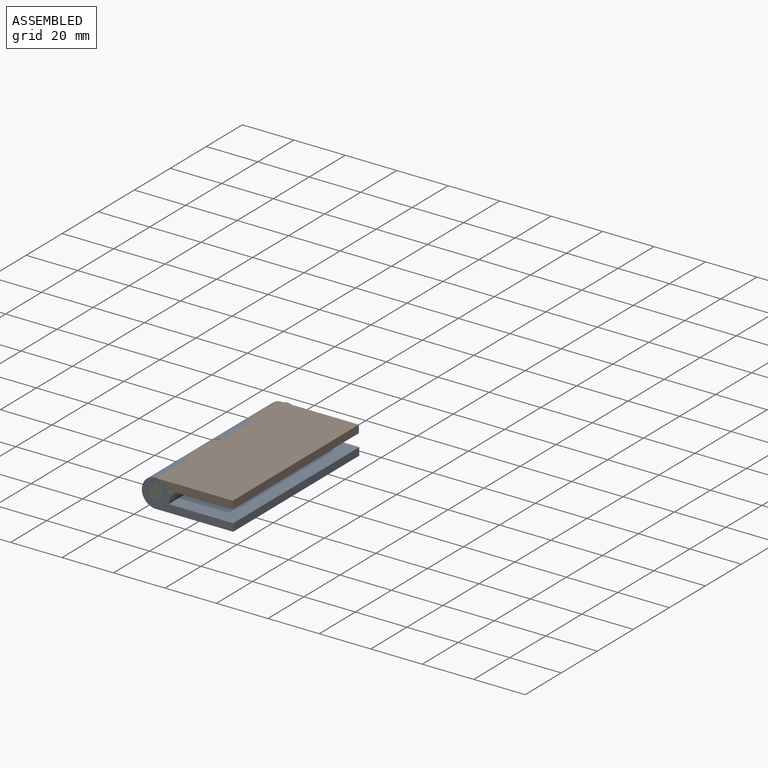
[diagram: assembled view]
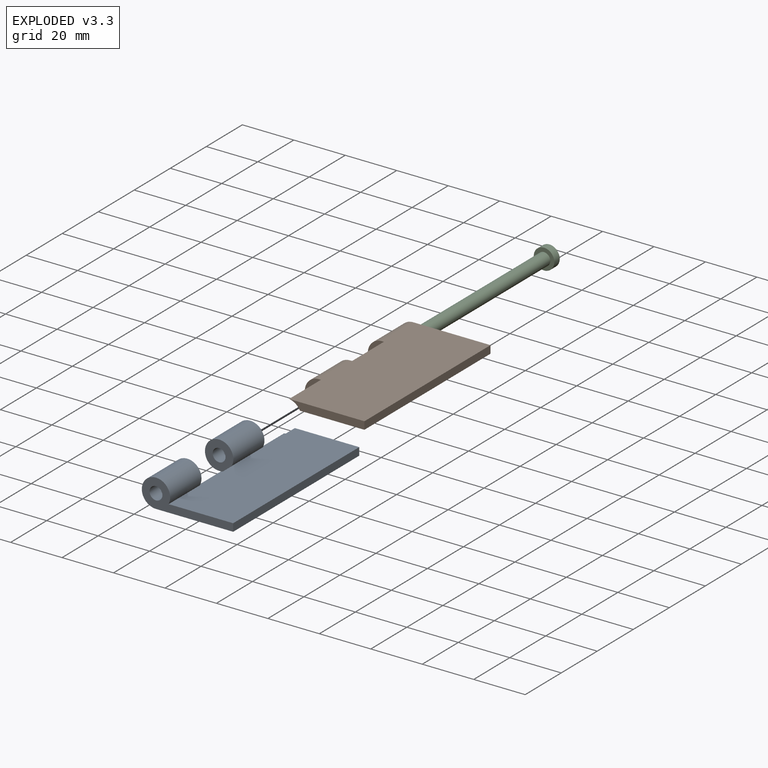
[diagram: exploded view]
GUIDED TOUR — FREECAD ASSEMBLY "ave door hinge"

This assembly has 3 components, labeled P0..P2 below (a component is one placed body or linked part; the same part can appear more than once), held together by 2 modeled joints. A joint is a constraint between two components; its type names the relative motion it leaves free:
  REVOLUTE — leaves rotation about the listed axis free (a hinge),
  SLIDER — leaves translation along the listed axis free.
Axis/direction vectors are unit vectors and 'through' points are millimeter coordinates, both in the assembly's world frame.

MATES
  1. SLIDER [Slider] "Joint": P2 <-> P0, axis (0.000, -1.000, 0.000) through (-15.00, -35.00, 5.50) mm
  2. REVOLUTE [Revolute] "Joint001": P0 <-> P1, axis (0.000, -1.000, 0.000) through (-15.00, -17.60, 5.50) mm

ASSEMBLY ORDER
  1. P0 — the base component [order heuristic]
  2. P1 [order heuristic]
  3. P2 [order heuristic]
Order-tag legend:
  [order heuristic] — this assembly is geometrically interlocked (no collision-free removal order exists), so components are listed in mate-graph order; insertion feasibility is not verified.

Of the 3 components, 3 carry a construction recipe — the FreeCAD feature program (sketches with constraints, then the solid features that consume them) that regenerates the part from scratch, quoted from this document or from the linked companion document it references; the rest are supplied as boundary geometry only. The tour below walks the components in assembly order: each is shown spotlighted twice — in the assembled view, then in the exploded view, where a leader line traces a displaced component back to its assembled socket (components that stay in place when exploded have no leader line; saturated green if recipe-attached, orange if geometry-only; every other component desaturated gray) — followed by its recipe or geometry summary and the mates that hold it.
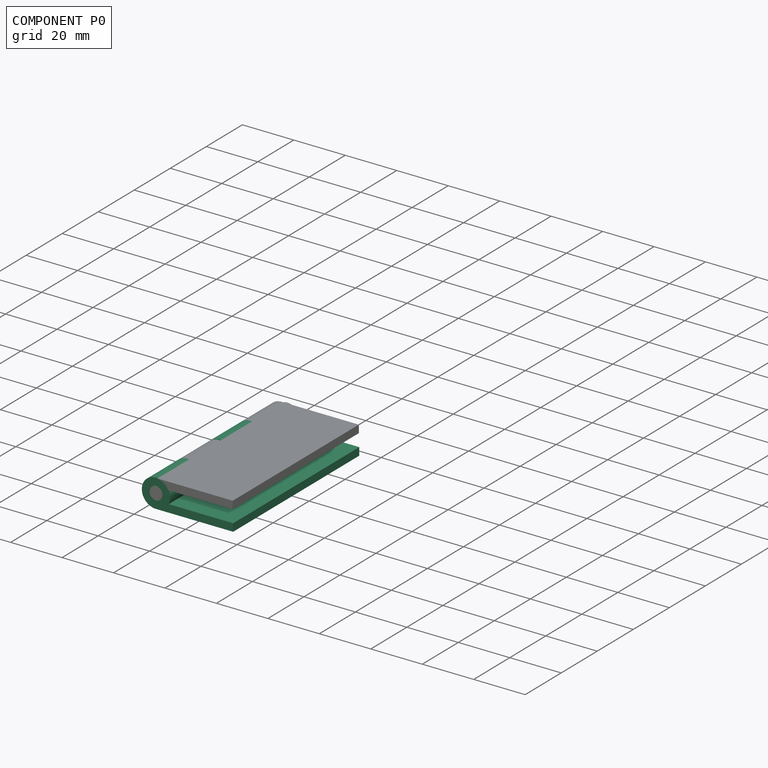
[diagram: component P0 — assembled]
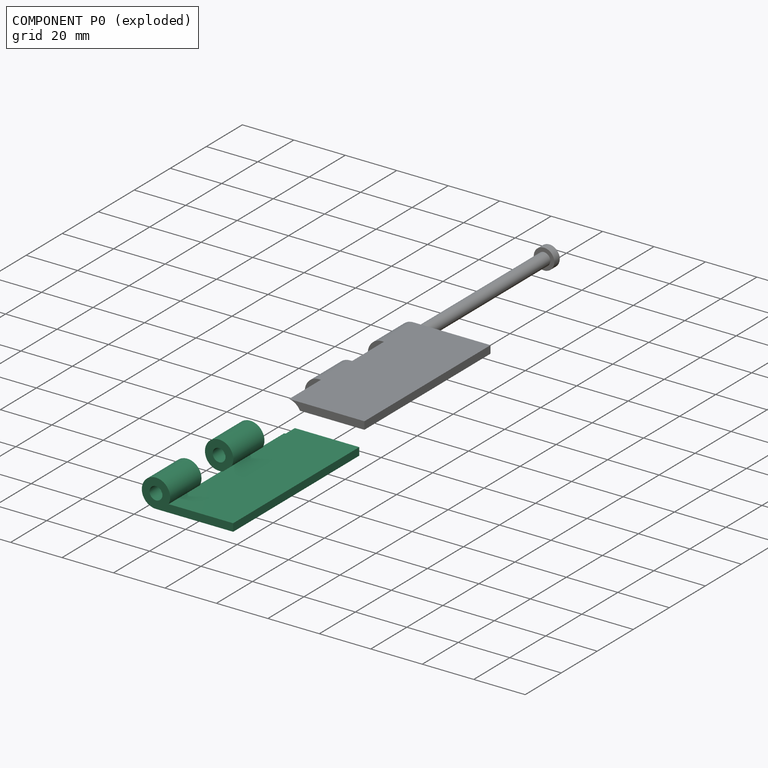
[diagram: component P0 — exploded]
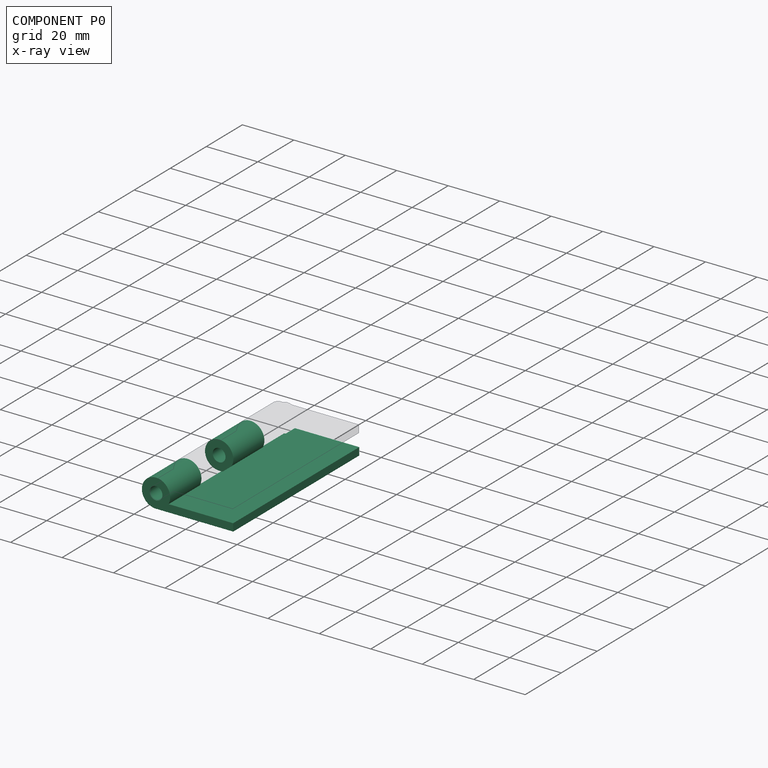
[diagram: component P0 — x-ray view]
COMPONENT P0 — recipe-attached ("Body005", modeled in this document).
Held by: SLIDER mate "Joint" to P2; REVOLUTE mate "Joint001" to P1.
Construction recipe (the document's own serialized feature program — sketch geometry with constraints, then the solid features built on it; lengths are millimeters unless a unit is written):

FEATURE [Sketcher::SketchObject] Sketch
  ArcFitTolerance = 1e-06
  AttachmentSupport = -> [XY_Plane]
  FullyConstrained = true
  MakeInternals = false
  MapMode = 5
  expr: Constraints[10] = <<demensions>>.bd
  expr: Constraints[11] = <<demensions>>.bw
  sketch-geometry (5):
    g0: LineSegment StartX=-15 StartY=-35 StartZ=0 EndX=15 EndY=-35 EndZ=0
    g1: LineSegment StartX=15 StartY=-35 StartZ=0 EndX=15 EndY=35 EndZ=0
    g2: LineSegment StartX=15 StartY=35 StartZ=0 EndX=-15 EndY=35 EndZ=0
    g3: LineSegment StartX=-15 StartY=35 StartZ=0 EndX=-15 EndY=-35 EndZ=0
    g4: GeomPoint [constr] X=0 Y=-3e-16 Z=0
  constraints (12):
    c: Coincident(g0,g1)
    c: Coincident(g1,g2)
    c: Coincident(g2,g3)
    c: Coincident(g3,g0)
    c: Horizontal(g0)
    c: Horizontal(g2)
    c: Vertical(g1)
    c: Vertical(g3)
    c: Symmetric(g2,g0,g4)
    c: Coincident(g4,g-1)
    c: DistanceX(g2,g2) = 30
    c: DistanceY(g1,g1) = 70
FEATURE [PartDesign::Pad] Pad
  Direction = (0,0,1)
  Length = 3
  Length2 = 10
  Profile = -> Sketch
  ReferenceAxis = -> Sketch [N_Axis]
  Refine = true
  Suppressed = false
  Type = 0
  expr: Length = <<demensions>>.bh
FEATURE [Sketcher::SketchObject] Sketch001
  ArcFitTolerance = 1e-06
  AttachmentSupport = -> [Pad]
  ExternalGeometry = -> [Pad]
  FullyConstrained = true
  MakeInternals = false
  MapMode = 5
  Placement = pos=(0,-35,0) rot=(1,0,0;1.5708rad)
  expr: Constraints[1] = <<demensions>>.cs
  expr: Constraints[2] = <<demensions>>.bh
  expr: Constraints[4] = -<<demensions>>.cs / 2
  sketch-geometry (2):
    g0: Circle CenterX=-15 CenterY=5.5 CenterZ=0 NormalX=0 NormalY=0 NormalZ=1 AngleXU=0 Radius=2.5
    g1: Circle CenterX=-15 CenterY=5.5 CenterZ=0 NormalX=0 NormalY=0 NormalZ=1 AngleXU=0 Radius=5.5
  constraints (5):
    c: Coincident(g1,g0)
    c: Diameter(g0) = 5
    c: Distance(g0,g1) = 3
    c: Tangent(g1,g-1)
    c: Distance(g0,g-3) = -2.5
FEATURE [PartDesign::Pad] Pad001
  BaseFeature = -> Pad
  Direction = (0,-1,2e-16)
  Length = 17.4
  Length2 = 10
  Profile = -> Sketch001
  ReferenceAxis = -> Sketch001 [N_Axis]
  Refine = true
  Reversed = true
  Suppressed = false
  Type = 0
  expr: Length = <<demensions>>.bw / 4 - <<demensions>>.to
FEATURE [PartDesign::LinearPattern] LinearPattern
  Direction = -> Y_Axis
  Length = 34.95
  Mode = 0
  Occurrences = 2
  Offset = 34.95
  Refine = true
  Suppressed = false
  TransformMode = 0
  expr: Length = <<demensions>>.bw / 2 - <<demensions>>.to / 2
FEATURE [PartDesign::MultiTransform] MultiTransform
  BaseFeature = -> Pad001
  Originals = -> [Pad001]
  Refine = true
  Suppressed = false
  TransformMode = 0
  Transformations = -> [LinearPattern]
FEATURE [Sketcher::SketchObject] Sketch006
  ArcFitTolerance = 1e-06
  AttachmentSupport = -> [MultiTransform]
  ExternalGeometry = -> [MultiTransform]
  FullyConstrained = true
  MakeInternals = false
  MapMode = 5
  Placement = pos=(0,-17.6,0) rot=(0,0.707107,0.707107;3.14159rad)
  expr: Constraints[1] = <<demensions>>.cs + <<demensions>>.bh * 2 + <<demensions>>.to
  sketch-geometry (1):
    g0: Circle CenterX=15 CenterY=5.5 CenterZ=0 NormalX=0 NormalY=0 NormalZ=1 AngleXU=0 Radius=5.55
  constraints (2):
    c: Coincident(g0,g-4)
    c: Diameter(g0) = 11.1
FEATURE [PartDesign::Pocket] Pocket
  BaseFeature = -> MultiTransform
  Direction = (0,-1,2e-16)
  Length = 17.65
  Length2 = 5
  Profile = -> Sketch006
  ReferenceAxis = -> Sketch006 [N_Axis]
  Refine = true
  Reversed = true
  Suppressed = false
  Type = 0
  expr: Length = <<demensions>>.bw / 4 + <<demensions>>.to + <<demensions>>.to / 2
FEATURE [Sketcher::SketchObject] Sketch007
  ArcFitTolerance = 1e-06
  AttachmentSupport = -> [Pocket]
  ExternalGeometry = -> [Pocket]
  FullyConstrained = true
  MakeInternals = false
  MapMode = 5
  Placement = pos=(0,17.35,0) rot=(0,0.707107,0.707107;3.14159rad)
  expr: Constraints[1] = <<demensions>>.cs + <<demensions>>.bh * 2 + <<demensions>>.to
  sketch-geometry (1):
    g0: Circle CenterX=15 CenterY=5.5 CenterZ=0 NormalX=0 NormalY=0 NormalZ=1 AngleXU=0 Radius=5.55
  constraints (2):
    c: Coincident(g0,g-4)
    c: Diameter(g0) = 11.1
FEATURE [PartDesign::Pocket] Pocket003
  BaseFeature = -> Pocket
  Direction = (0,-1,2e-16)
  Length = 17.65
  Length2 = 5
  Profile = -> Sketch007 [Edge1]
  ReferenceAxis = -> Sketch007 [N_Axis]
  Refine = true
  Reversed = true
  Suppressed = false
  Type = 0
  expr: Length = <<demensions>>.bw / 4 + <<demensions>>.to + <<demensions>>.to / 2
FEATURE [PartDesign::Body] Body
  AllowCompound = false
  Group = -> [Sketch,Pad,Sketch001,Pad001,MultiTransform,LinearPattern,Sketch006,Pocket,Sketch007,Pocket003]
  Origin = -> Origin
  Tip = -> Pocket003
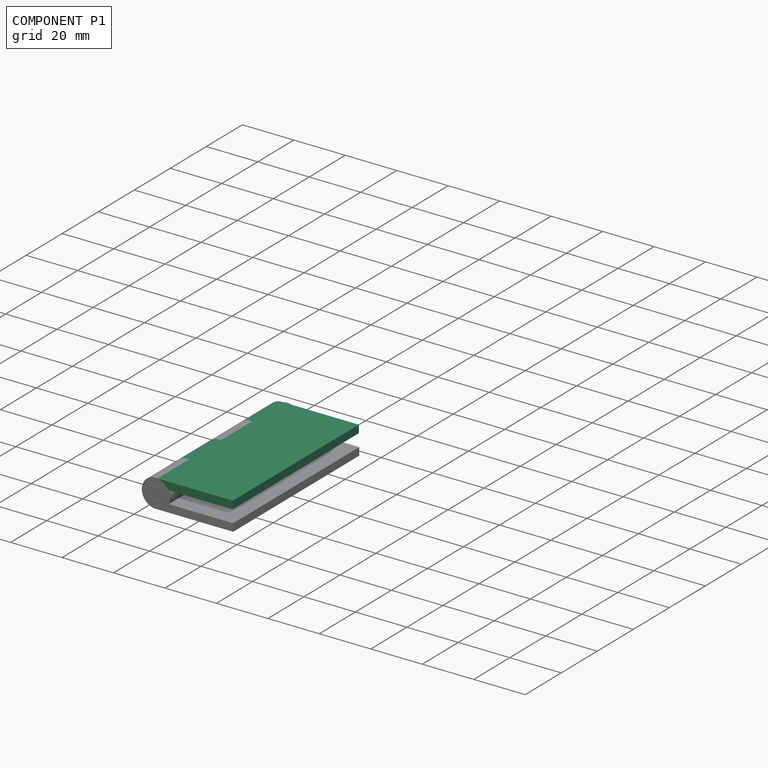
[diagram: component P1 — assembled]
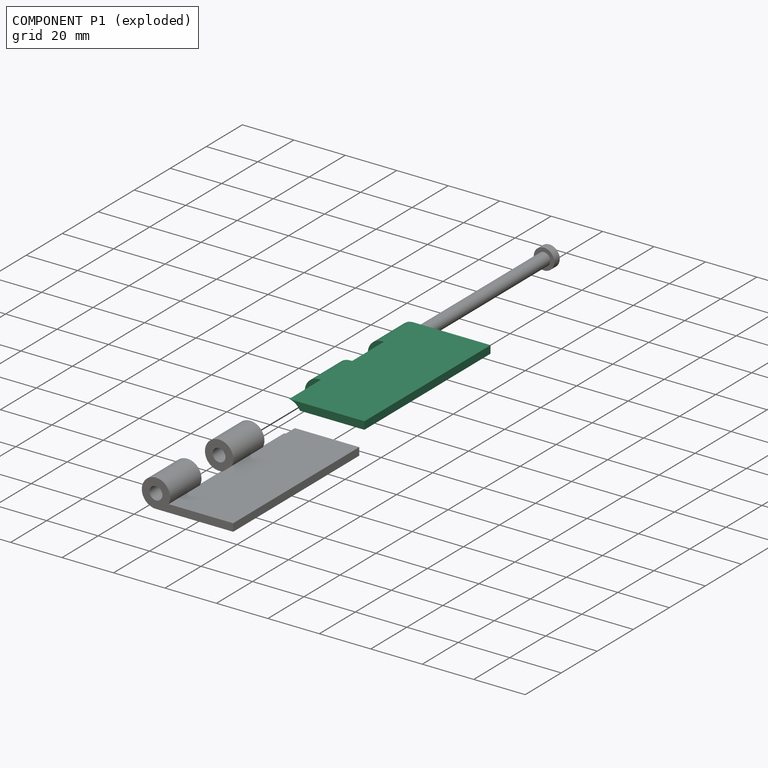
[diagram: component P1 — exploded]
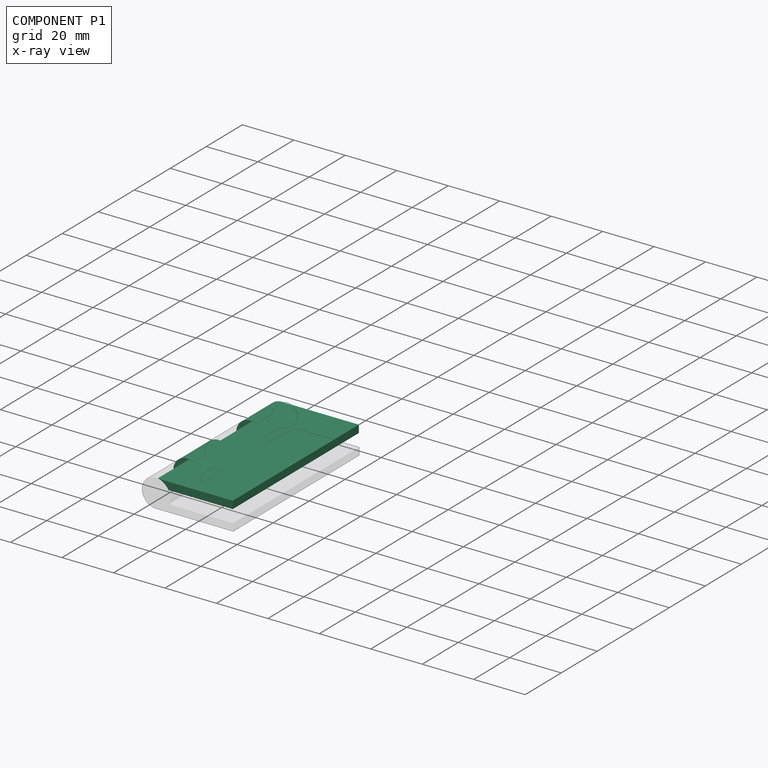
[diagram: component P1 — x-ray view]
COMPONENT P1 — recipe-attached ("Body006", modeled in this document).
Held by: REVOLUTE mate "Joint001" to P0.
Construction recipe (the document's own serialized feature program — sketch geometry with constraints, then the solid features built on it; lengths are millimeters unless a unit is written):

FEATURE [Sketcher::SketchObject] Sketch002
  ArcFitTolerance = 1e-06
  AttachmentSupport = -> [XY_Plane001]
  FullyConstrained = false
  MakeInternals = false
  MapMode = 5
  expr: Constraints[10] = <<demensions>>.bd
  expr: Constraints[11] = <<demensions>>.bw
  sketch-geometry (5):
    g0: LineSegment StartX=-66.0282 StartY=35 StartZ=0 EndX=-96.0282 EndY=35 EndZ=0
    g1: LineSegment StartX=-96.0282 StartY=35 StartZ=0 EndX=-96.0282 EndY=-35 EndZ=0
    g2: LineSegment StartX=-96.0282 StartY=-35 StartZ=0 EndX=-66.0282 EndY=-35 EndZ=0
    g3: LineSegment StartX=-66.0282 StartY=-35 StartZ=0 EndX=-66.0282 EndY=35 EndZ=0
    g4: GeomPoint [constr] X=-81.0282 Y=3e-16 Z=0
  constraints (12):
    c: Coincident(g0,g1)
    c: Coincident(g1,g2)
    c: Coincident(g2,g3)
    c: Coincident(g3,g0)
    c: Horizontal(g0)
    c: Horizontal(g2)
    c: Vertical(g1)
    c: Vertical(g3)
    c: Symmetric(g2,g0,g4)
    c: PointOnObject(g4,g-1)
    c: DistanceX(g2,g2) = 30
    c: DistanceY(g3,g3) = 70
FEATURE [PartDesign::Pad] Pad002
  Direction = (0,0,1)
  Length = 3
  Length2 = 10
  Profile = -> Sketch002
  ReferenceAxis = -> Sketch002 [N_Axis]
  Refine = true
  Suppressed = false
  Type = 0
  expr: Length = <<demensions>>.bh
FEATURE [Sketcher::SketchObject] Sketch003
  ArcFitTolerance = 1e-06
  AttachmentSupport = -> [Pad002]
  ExternalGeometry = -> [Pad002]
  FullyConstrained = true
  MakeInternals = false
  MapMode = 5
  Placement = pos=(0,35,0) rot=(0,0.707107,0.707107;3.14159rad)
  expr: Constraints[1] = <<demensions>>.cs
  expr: Constraints[2] = <<demensions>>.bh
  expr: Constraints[4] = -<<demensions>>.cs / 2
  sketch-geometry (2):
    g0: Circle CenterX=66.0282 CenterY=5.5 CenterZ=0 NormalX=0 NormalY=0 NormalZ=1 AngleXU=0 Radius=2.5
    g1: Circle CenterX=66.0282 CenterY=5.5 CenterZ=0 NormalX=0 NormalY=0 NormalZ=1 AngleXU=0 Radius=5.5
  constraints (5):
    c: Coincident(g1,g0)
    c: Diameter(g0) = 5
    c: Distance(g0,g1) = 3
    c: Tangent(g1,g-1)
    c: Distance(g0,g-3) = -2.5
FEATURE [PartDesign::Pad] Pad003
  BaseFeature = -> Pad002
  Direction = (0,1,-2e-16)
  Length = 17.4
  Length2 = 10
  Profile = -> Sketch003
  ReferenceAxis = -> Sketch003 [N_Axis]
  Refine = true
  Reversed = true
  Suppressed = false
  Type = 0
  expr: Length = <<demensions>>.bw / 4 - <<demensions>>.to
FEATURE [PartDesign::LinearPattern] LinearPattern001
  Direction = -> Y_Axis001
  Length = 34.95
  Mode = 0
  Occurrences = 2
  Offset = 34.95
  Refine = true
  Reversed = true
  Suppressed = false
  TransformMode = 0
  expr: Length = <<demensions>>.bw / 2 - <<demensions>>.to / 2
FEATURE [PartDesign::MultiTransform] MultiTransform001
  BaseFeature = -> Pad003
  Originals = -> [Pad003]
  Refine = true
  Suppressed = false
  TransformMode = 0
  Transformations = -> [LinearPattern001]
FEATURE [Sketcher::SketchObject] Sketch008
  ArcFitTolerance = 1e-06
  AttachmentSupport = -> [MultiTransform001]
  ExternalGeometry = -> [MultiTransform001]
  FullyConstrained = true
  MakeInternals = false
  MapMode = 5
  Placement = pos=(0,17.6,0) rot=(1,0,0;1.5708rad)
  expr: Constraints[1] = <<demensions>>.cs + <<demensions>>.bh * 2 + <<demensions>>.to
  sketch-geometry (1):
    g0: Circle CenterX=-66.0282 CenterY=5.5 CenterZ=0 NormalX=0 NormalY=0 NormalZ=1 AngleXU=0 Radius=5.55
  constraints (2):
    c: Coincident(g0,g-3)
    c: Diameter(g0) = 11.1
FEATURE [Sketcher::SketchObject] Sketch009
  ArcFitTolerance = 1e-06
  AttachmentSupport = -> [MultiTransform001]
  ExternalGeometry = -> [MultiTransform001]
  FullyConstrained = true
  MakeInternals = false
  MapMode = 5
  Placement = pos=(0,-17.35,0) rot=(1,0,0;1.5708rad)
  expr: Constraints[1] = <<demensions>>.cs + <<demensions>>.bh * 2 + <<demensions>>.to
  sketch-geometry (1):
    g0: Circle CenterX=-66.0282 CenterY=5.5 CenterZ=0 NormalX=0 NormalY=0 NormalZ=1 AngleXU=0 Radius=5.55
  constraints (2):
    c: Coincident(g0,g-3)
    c: Diameter(g0) = 11.1
FEATURE [PartDesign::Pocket] Pocket001
  BaseFeature = -> MultiTransform001
  Direction = (0,1,-2e-16)
  Length = 17.65
  Length2 = 5
  Profile = -> Sketch008 [Edge1]
  ReferenceAxis = -> Sketch008 [N_Axis]
  Refine = true
  Reversed = true
  Suppressed = false
  Type = 0
  expr: Length = <<demensions>>.bw / 4 + <<demensions>>.to + <<demensions>>.to / 2
FEATURE [PartDesign::Pocket] Pocket002
  BaseFeature = -> Pocket001
  Direction = (0,1,-2e-16)
  Length = 17.65
  Length2 = 5
  Profile = -> Sketch009 [Edge1]
  ReferenceAxis = -> Sketch009 [N_Axis]
  Refine = true
  Reversed = true
  Suppressed = false
  Type = 0
  expr: Length = <<demensions>>.bw / 4 + <<demensions>>.to + <<demensions>>.to / 2
FEATURE [PartDesign::Body] Body001
  AllowCompound = false
  Group = -> [Sketch002,Pad002,Sketch003,Pad003,MultiTransform001,LinearPattern001,Sketch008,Sketch009,Pocket001,Pocket002]
  Origin = -> Origin001
  Tip = -> Pocket002
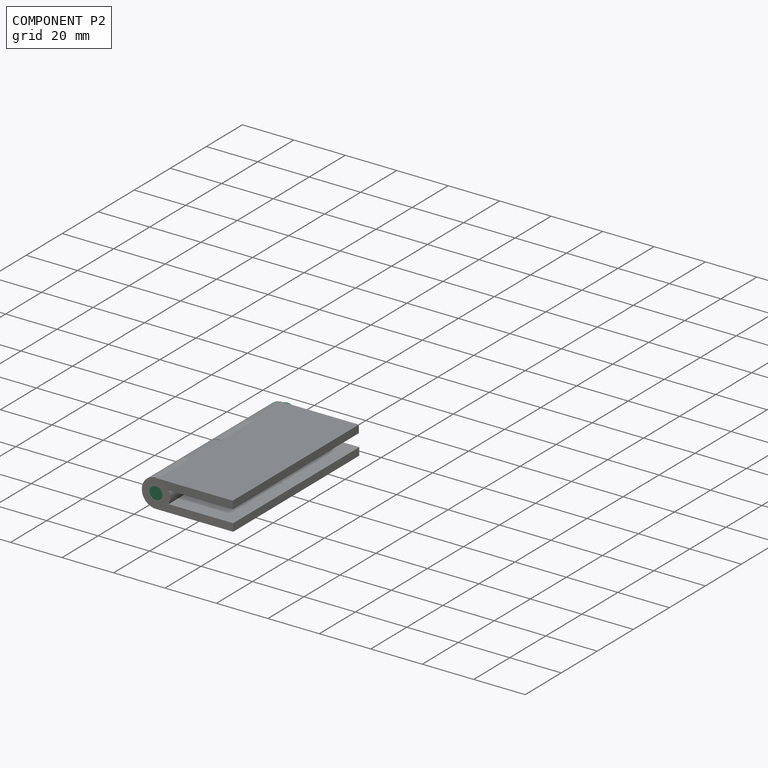
[diagram: component P2 — assembled]
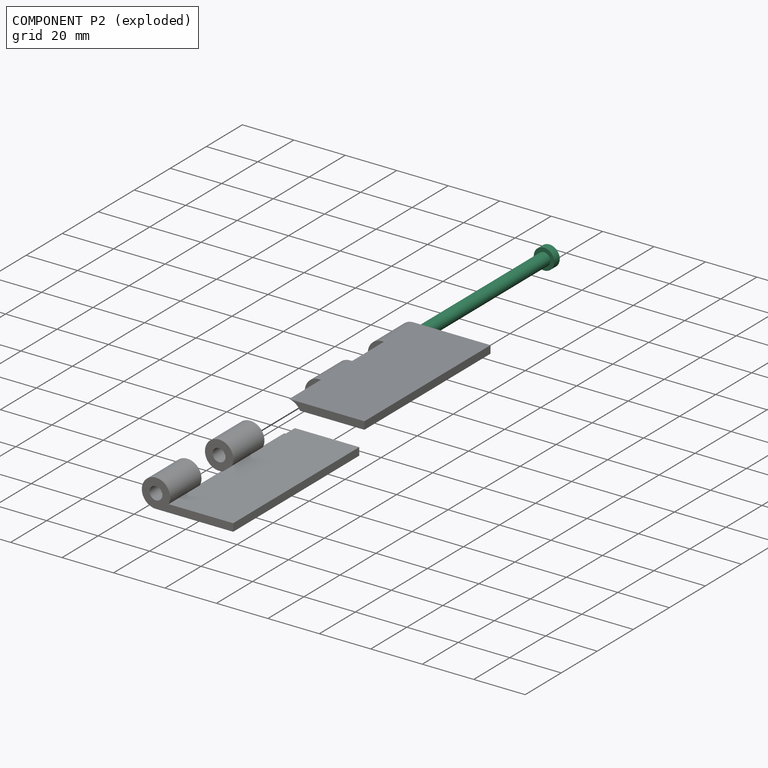
[diagram: component P2 — exploded]
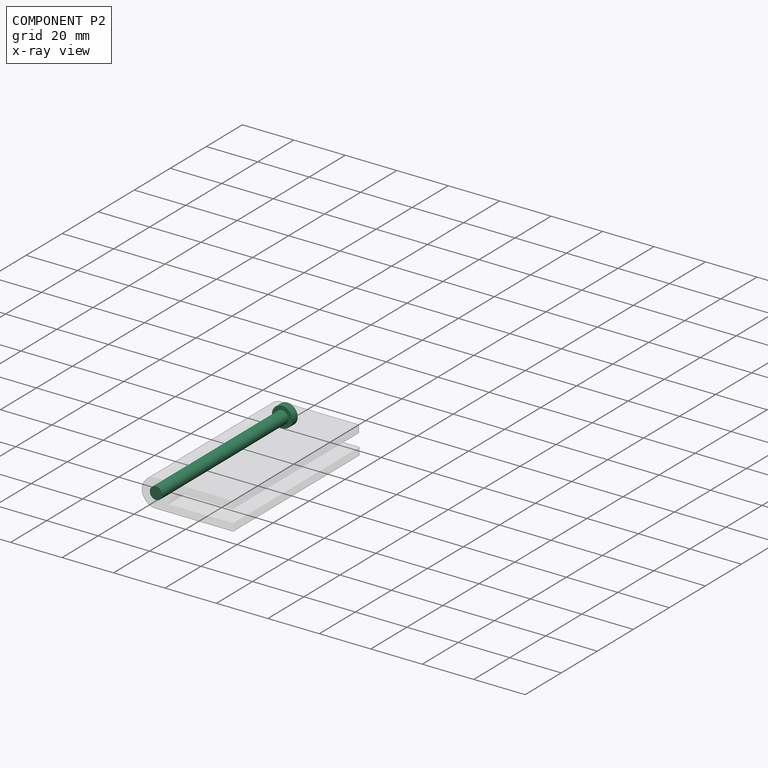
[diagram: component P2 — x-ray view]
COMPONENT P2 — recipe-attached ("Body007", modeled in this document).
Held by: SLIDER mate "Joint" to P0.
Construction recipe (the document's own serialized feature program — sketch geometry with constraints, then the solid features built on it; lengths are millimeters unless a unit is written):

FEATURE [Sketcher::SketchObject] Sketch004
  ArcFitTolerance = 1e-06
  AttachmentSupport = -> [XZ_Plane003]
  FullyConstrained = false
  MakeInternals = false
  MapMode = 5
  Placement = pos=(0,0,0) rot=(1,0,0;1.5708rad)
  expr: Constraints[0] = <<demensions>>.cs - <<demensions>>.to
  sketch-geometry (1):
    g0: Circle CenterX=-42.4747 CenterY=8.43827 CenterZ=0 NormalX=0 NormalY=0 NormalZ=1 AngleXU=0 Radius=2.45
  constraints (1):
    c: Diameter(g0) = 4.9
FEATURE [PartDesign::Pad] Pad004
  Direction = (0,-1,2e-16)
  Length = 35
  Length2 = 35
  Placement = pos=(0,0,0) rot=(1,0,0;1.5708rad)
  Profile = -> Sketch004
  ReferenceAxis = -> Sketch004 [N_Axis]
  Refine = true
  Suppressed = false
  Type = 4
  expr: Length = <<demensions>>.bw / 2
  expr: Length2 = <<demensions>>.bw / 2
FEATURE [Sketcher::SketchObject] Sketch005
  ArcFitTolerance = 1e-06
  AttachmentSupport = -> [Pad004]
  ExternalGeometry = -> [Pad004]
  FullyConstrained = true
  MakeInternals = false
  MapMode = 5
  Placement = pos=(0,35,0) rot=(-1,0,0;1.5708rad)
  expr: Constraints[1] = <<demensions>>.cs + <<demensions>>.bh
  sketch-geometry (1):
    g0: Circle CenterX=-42.4747 CenterY=-8.43827 CenterZ=0 NormalX=0 NormalY=0 NormalZ=1 AngleXU=0 Radius=4
  constraints (2):
    c: Coincident(g0,g-3)
    c: Diameter(g0) = 8
FEATURE [PartDesign::Pad] Pad005
  BaseFeature = -> Pad004
  Direction = (0,1,2e-16)
  Length = 3
  Length2 = 10
  Placement = pos=(0,0,0) rot=(1,0,0;1.5708rad)
  Profile = -> Sketch005 [Edge1]
  ReferenceAxis = -> Sketch005 [N_Axis]
  Refine = true
  Suppressed = false
  Type = 0
  expr: Length = <<demensions>>.pe
FEATURE [PartDesign::Body] Body004
  AllowCompound = false
  Group = -> [Sketch004,Pad004,Sketch005,Pad005]
  Origin = -> Origin003
  Tip = -> Pad005
PROVENANCE & LICENSES
Assembly and component geometry: a FreeCAD (.FCStd) document from a public repository crawl; components, placements and joints were extracted with FreeCAD and each solid tessellated.
Construction recipes: the document's own serialized feature recipes (and, for linked parts, the recipes of companion documents from the same project).
License: as declared in the source repository (recorded in the dataset sidecar).
Joints: native FreeCAD joints and A2plus constraints are mapped to standard mate types.
Verification: 3 of this assembly's 3 components carry a construction recipe (3 from this document itself); the rest are geometry-only. Every component's tessellation passed the extraction mesh gates (mesh-volume checksum against the B-rep where available, bounding-box inflation <= 2%).
Renders: orthographic iso camera (az 35 / el 25); the floor grid conveys scale (grid pitch printed in each image; no ruler). In the exploded view each component is displaced by its stored offset vector: the offsets alone carry the explosion direction (mate normal/axis signs are not orientation cues and do not encode it), and separation distances are assigned per mate-chain, not proportionally to assembly-order depth.
